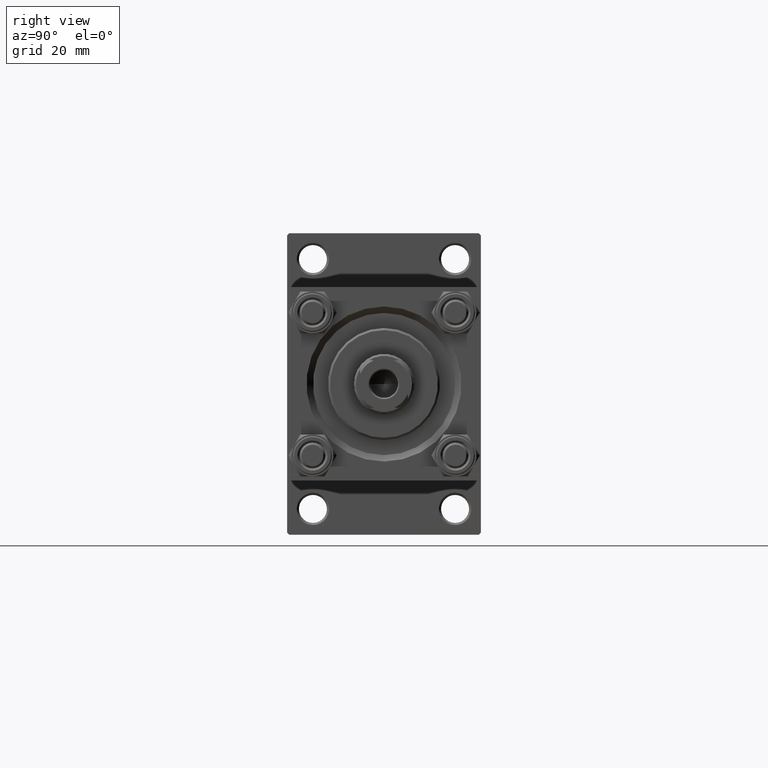
[diagram: clean part render]
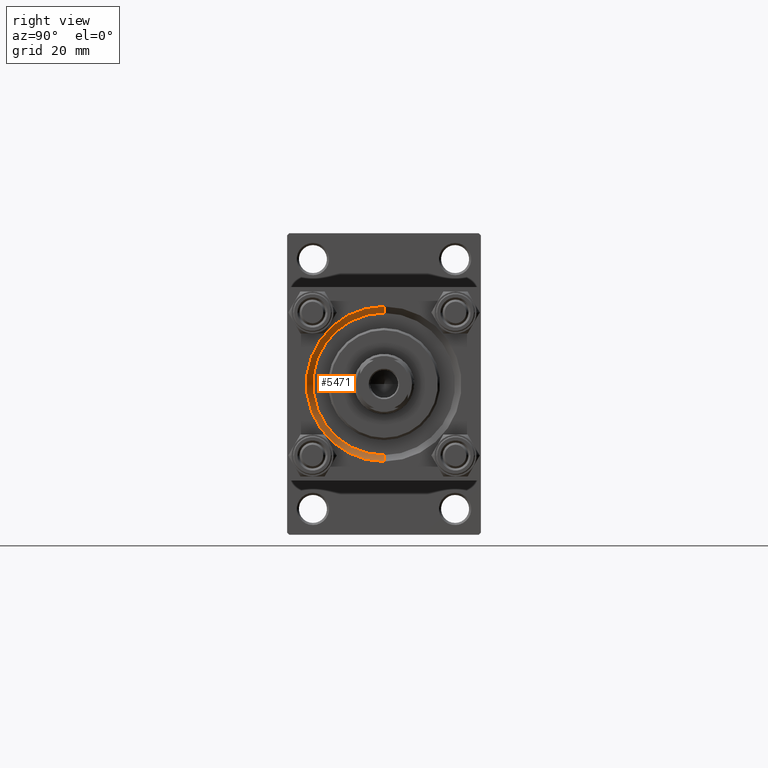
[diagram: same view with one face highlighted and labeled with its STEP entity id]
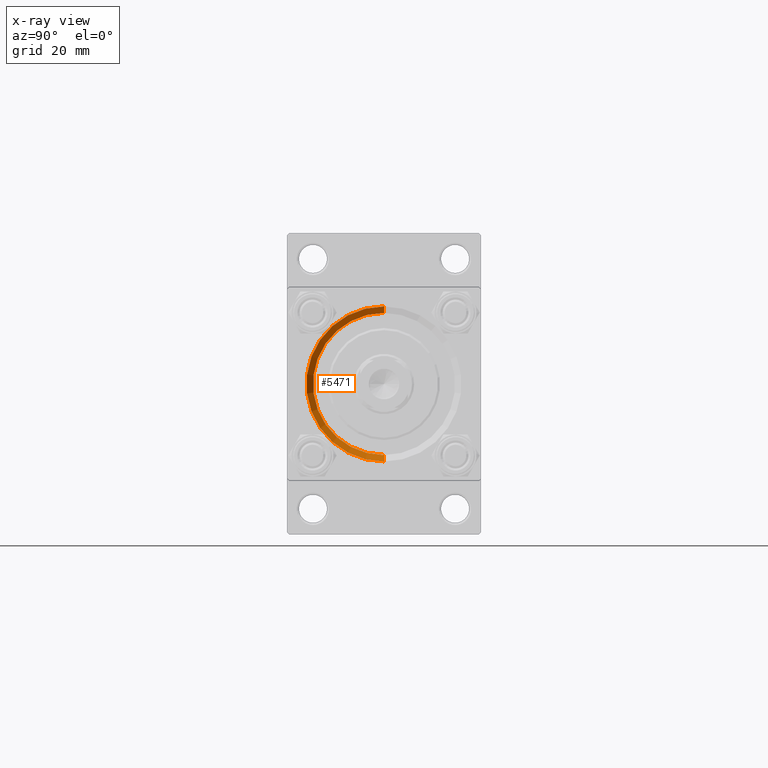
[diagram: x-ray of the same camera — body ghosted, the highlighted face saturated]
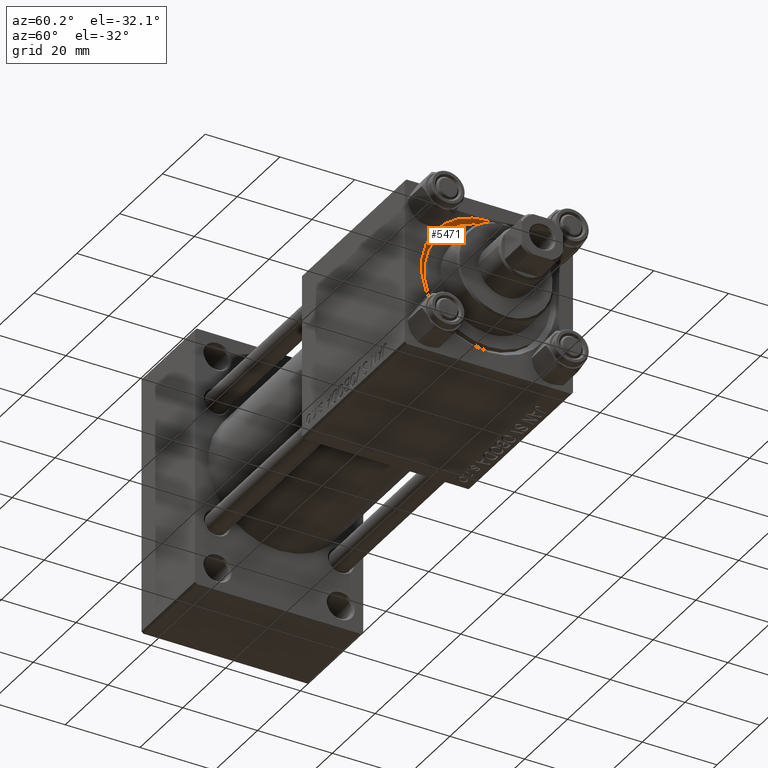
[diagram: same view with one face highlighted and labeled with its STEP entity id]
A machine part, right view. The second image highlights one B-rep face of the part: STEP entity #5471.
The next image is the same camera in x-ray: the body ghosted, the highlighted face saturated — about 0% of this face is hidden behind the body in this view.
A second angle (auxiliary view) of the same face is appended — the face is thin or edge-on in the first view.
In plain terms, the highlighted conical surface has half-angle 45 deg.
Its self-contained STEP definition (entity closure, byte-faithful):
#611 = CARTESIAN_POINT ( 'NONE',  ( 121.5000000000000000, 0.000000000000000000, 0.000000000000000000 ) ) ;
#5471 = ADVANCED_FACE ( 'NONE', ( #23974 ), #30987, .F. ) ;
#6226 = CIRCLE ( 'NONE', #38509, 16.50000000000000000 ) ;
#6515 = ORIENTED_EDGE ( 'NONE', *, *, #39855, .T. ) ;
#7412 = VERTEX_POINT ( 'NONE', #11070 ) ;
#7866 = DIRECTION ( 'NONE',  ( 0.7071067811865507924, 8.659560562354892183E-17, 0.7071067811865441310 ) ) ;
#11007 = DIRECTION ( 'NONE',  ( 0.7071067811865507924, 0.000000000000000000, -0.7071067811865441310 ) ) ;
#11070 = CARTESIAN_POINT ( 'NONE',  ( 121.5000000000000000, 0.000000000000000000, -16.50000000000000000 ) ) ;
#11072 = VERTEX_POINT ( 'NONE', #27048 ) ;
#11148 = CARTESIAN_POINT ( 'NONE',  ( 123.0000000000000142, 0.000000000000000000, 0.000000000000000000 ) ) ;
#12071 = ORIENTED_EDGE ( 'NONE', *, *, #40826, .F. ) ;
#15023 = LINE ( 'NONE', #26640, #34224 ) ;
#15040 = VECTOR ( 'NONE', #7866, 1000.000000000000114 ) ;
#17737 = VERTEX_POINT ( 'NONE', #26168 ) ;
#17854 = DIRECTION ( 'NONE',  ( 1.000000000000000000, 0.000000000000000000, 0.000000000000000000 ) ) ;
#18448 = DIRECTION ( 'NONE',  ( 0.000000000000000000, 0.000000000000000000, 1.000000000000000000 ) ) ;
#21981 = DIRECTION ( 'NONE',  ( -1.000000000000000000, 0.000000000000000000, -0.000000000000000000 ) ) ;
#23276 = EDGE_LOOP ( 'NONE', ( #12071, #6515, #33485, #24135 ) ) ;
#23974 = FACE_OUTER_BOUND ( 'NONE', #23276, .T. ) ;
#24135 = ORIENTED_EDGE ( 'NONE', *, *, #30808, .F. ) ;
#24225 = CARTESIAN_POINT ( 'NONE',  ( 121.5000000000000000, 0.000000000000000000, 0.000000000000000000 ) ) ;
#26168 = CARTESIAN_POINT ( 'NONE',  ( 121.5000000000000000, 2.020667218593133100E-15, 16.50000000000000000 ) ) ;
#26640 = CARTESIAN_POINT ( 'NONE',  ( 121.5000000000000000, 0.000000000000000000, -16.50000000000000000 ) ) ;
#27048 = CARTESIAN_POINT ( 'NONE',  ( 123.0000000000000142, 2.204364238465235822E-15, 18.00000000000000355 ) ) ;
#27359 = DIRECTION ( 'NONE',  ( 0.000000000000000000, 0.000000000000000000, 1.000000000000000000 ) ) ;
#30808 = EDGE_CURVE ( 'NONE', #7412, #30968, #15023, .T. ) ;
#30822 = CARTESIAN_POINT ( 'NONE',  ( 121.5000000000000000, 2.020667218593133100E-15, 16.50000000000000000 ) ) ;
#30968 = VERTEX_POINT ( 'NONE', #41518 ) ;
#30987 = CONICAL_SURFACE ( 'NONE', #31834, 16.50000000000000000, 0.7853981633974437271 ) ;
#31834 = AXIS2_PLACEMENT_3D ( 'NONE', #24225, #17854, #44672 ) ;
#33485 = ORIENTED_EDGE ( 'NONE', *, *, #36776, .F. ) ;
#34224 = VECTOR ( 'NONE', #11007, 1000.000000000000114 ) ;
#36776 = EDGE_CURVE ( 'NONE', #30968, #11072, #39209, .T. ) ;
#38509 = AXIS2_PLACEMENT_3D ( 'NONE', #611, #42797, #27359 ) ;
#38680 = LINE ( 'NONE', #30822, #15040 ) ;
#39209 = CIRCLE ( 'NONE', #40817, 18.00000000000000355 ) ;
#39855 = EDGE_CURVE ( 'NONE', #17737, #11072, #38680, .T. ) ;
#40817 = AXIS2_PLACEMENT_3D ( 'NONE', #11148, #21981, #18448 ) ;
#40826 = EDGE_CURVE ( 'NONE', #17737, #7412, #6226, .T. ) ;
#41518 = CARTESIAN_POINT ( 'NONE',  ( 123.0000000000000142, 0.000000000000000000, -18.00000000000000355 ) ) ;
#42797 = DIRECTION ( 'NONE',  ( 1.000000000000000000, 0.000000000000000000, 0.000000000000000000 ) ) ;
#44672 = DIRECTION ( 'NONE',  ( 0.000000000000000000, 0.000000000000000000, -1.000000000000000000 ) ) ;